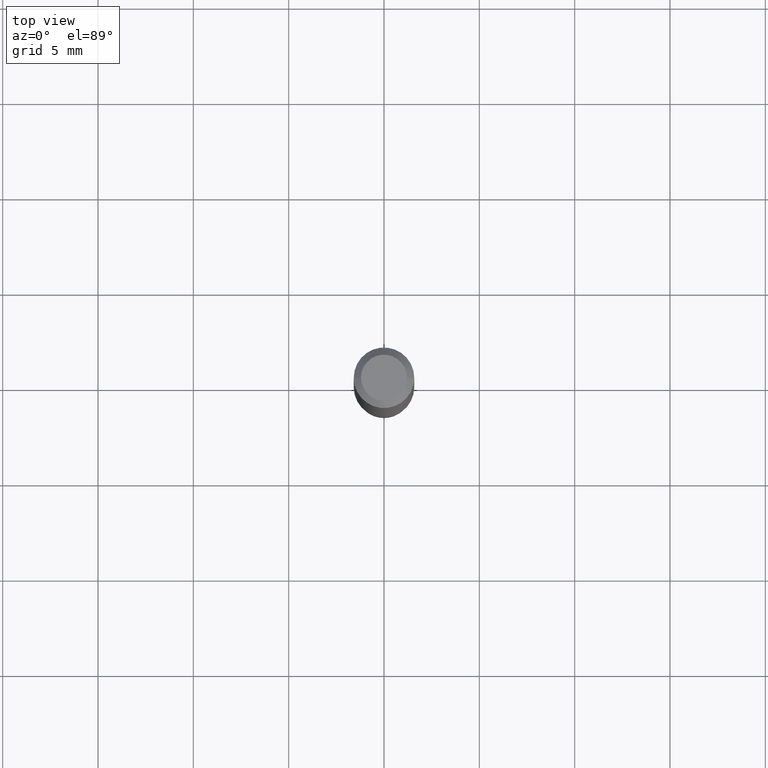
[diagram: clean part render]
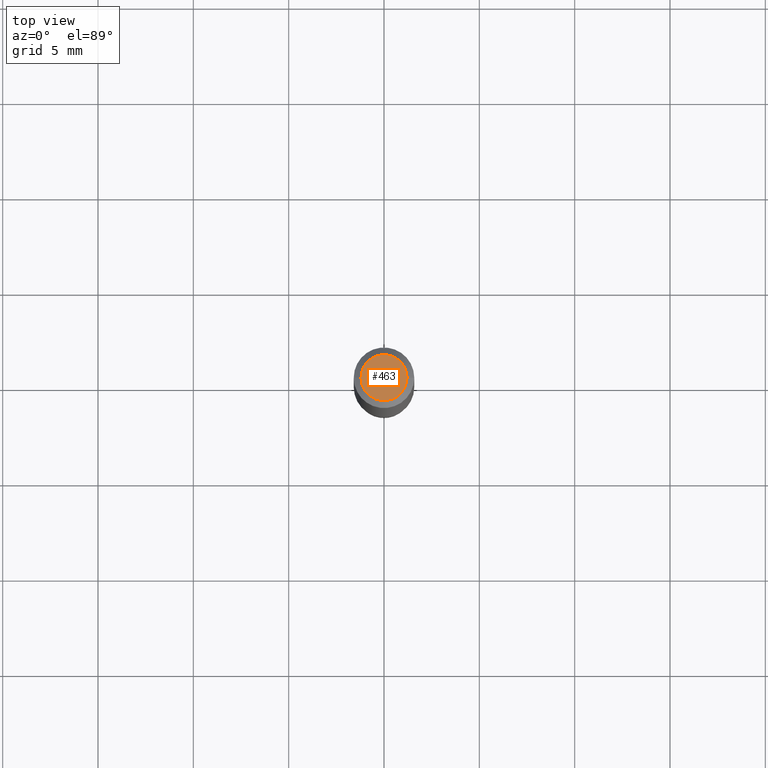
[diagram: same view with one face highlighted and labeled with its STEP entity id]
A machine part, top view. The second image highlights one B-rep face of the part: STEP entity #463.
In plain terms, the highlighted planar face has unit normal (0, -0, -1).
Its self-contained STEP definition (entity closure, byte-faithful):
#4 = DIRECTION ( 'NONE',  ( 2.438088387897960049E-29, -3.491481338843145188E-15, -1.000000000000000000 ) ) ;
#66 = DIRECTION ( 'NONE',  ( -1.000000000000000000, 6.982962677686265922E-15, -4.876176775795935793E-29 ) ) ;
#67 = ORIENTED_EDGE ( 'NONE', *, *, #187, .T. ) ;
#91 = CARTESIAN_POINT ( 'NONE',  ( -0.04750000000000000749, 3.578768372314221353E-16, 2.731847993664239060E-16 ) ) ;
#132 = VERTEX_POINT ( 'NONE', #506 ) ;
#145 = AXIS2_PLACEMENT_3D ( 'NONE', #433, #4, #66 ) ;
#171 = EDGE_LOOP ( 'NONE', ( #67, #189 ) ) ;
#187 = EDGE_CURVE ( 'NONE', #266, #132, #444, .T. ) ;
#189 = ORIENTED_EDGE ( 'NONE', *, *, #357, .T. ) ;
#190 = AXIS2_PLACEMENT_3D ( 'NONE', #256, #338, #419 ) ;
#238 = CARTESIAN_POINT ( 'NONE',  ( -6.680649051745406845E-45, 9.538196290434862081E-31, 2.731847993664263218E-16 ) ) ;
#256 = CARTESIAN_POINT ( 'NONE',  ( -6.680649051745406845E-45, 9.538196290434862081E-31, 2.731847993664263218E-16 ) ) ;
#266 = VERTEX_POINT ( 'NONE', #91 ) ;
#327 = DIRECTION ( 'NONE',  ( 1.000000000000000000, -6.982962677686266711E-15, 4.852736867747365086E-29 ) ) ;
#338 = DIRECTION ( 'NONE',  ( -2.445468806185136597E-29, 3.491481338843145583E-15, 1.000000000000000000 ) ) ;
#357 = EDGE_CURVE ( 'NONE', #132, #266, #364, .T. ) ;
#360 = PLANE ( 'NONE',  #145 ) ;
#364 = CIRCLE ( 'NONE', #467, 0.04750000000000000749 ) ;
#410 = FACE_OUTER_BOUND ( 'NONE', #171, .T. ) ;
#419 = DIRECTION ( 'NONE',  ( 1.000000000000000000, -6.982962677686266711E-15, 4.852736867747365086E-29 ) ) ;
#433 = CARTESIAN_POINT ( 'NONE',  ( 3.316907271900976589E-16, 0.04750000000000000749, -2.925296391183627249E-17 ) ) ;
#444 = CIRCLE ( 'NONE', #190, 0.04750000000000000749 ) ;
#463 = ADVANCED_FACE ( 'NONE', ( #410 ), #360, .F. ) ;
#467 = AXIS2_PLACEMENT_3D ( 'NONE', #238, #478, #327 ) ;
#478 = DIRECTION ( 'NONE',  ( -2.445468806185136597E-29, 3.491481338843145583E-15, 1.000000000000000000 ) ) ;
#506 = CARTESIAN_POINT ( 'NONE',  ( 0.04750000000000000749, -4.035134999187568762E-16, 2.731847993664288856E-16 ) ) ;